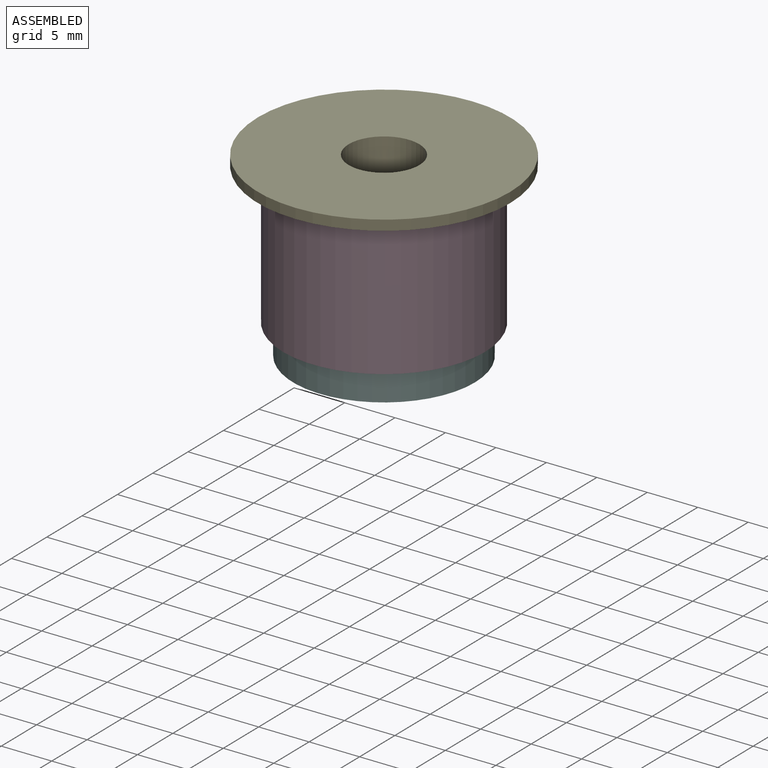
[diagram: assembled view]
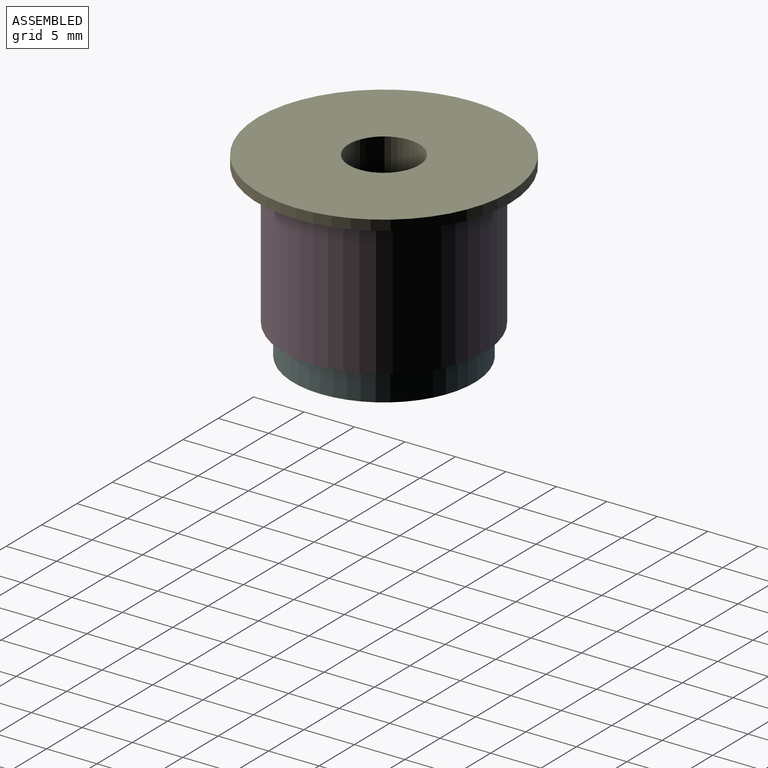
[diagram: assembled view, second angle]
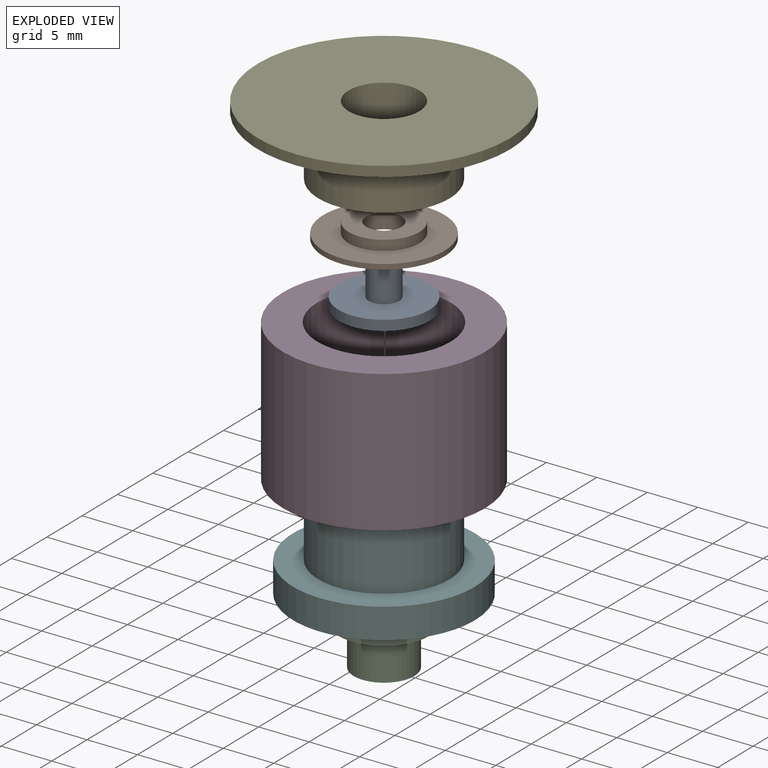
[diagram: exploded view]
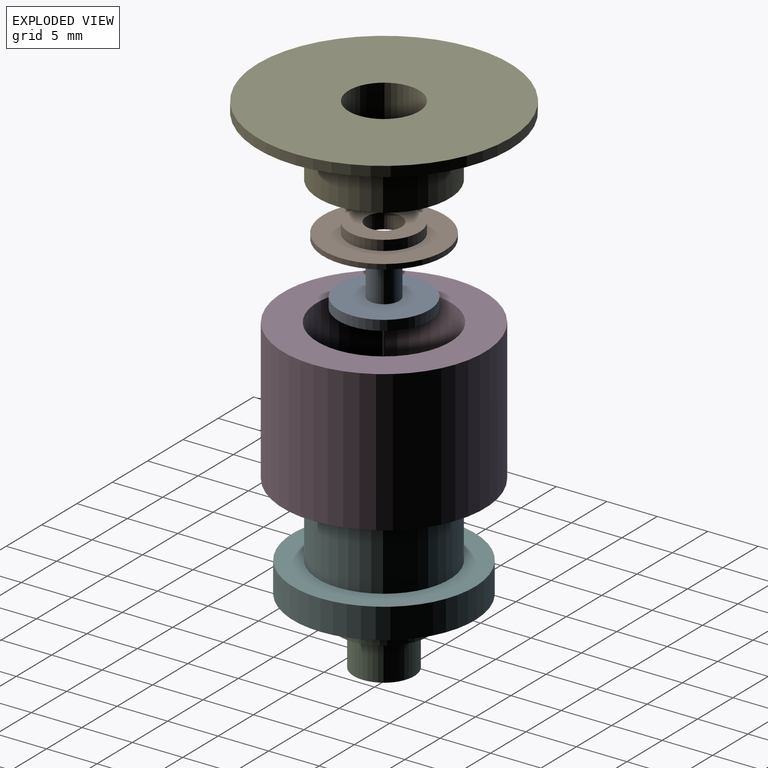
[diagram: exploded view, second angle]
ASSEMBLY  parts=6 mates=5
PART A: 5 faces, bbox 9x9x4.5 mm
  f0: cylinder r=4.5mm len=9mm, axis (0,0,1), area 28.3mm2, adj f1,f2
  f1: plane 9x9mm, normal (0,0,-1), area 63.6mm2, adj f0
  f2: plane 9x9mm, normal (0,0,1), area 56.5mm2, adj f0,f3
  f3: cylinder r=1.5mm len=3.5mm, axis (0,0,-1), area 33mm2, adj f2,f4
  f4: plane 3x3mm, normal (0,0,1), area 7.1mm2, adj f3
PART B: 6 faces, bbox 12x12x1.5 mm
  f0: cylinder r=6mm len=12mm, axis (0,0,1), area 18.8mm2, adj f2,f3
  f1: cylinder r=1.75mm len=3.5mm, axis (0,0,1), area 16.5mm2, adj f2,f5
  f2: plane 12x12mm, normal (0,0,-1), area 103.5mm2, adj f0,f1
  f3: plane 12x12mm, normal (0,0,1), area 74.6mm2, adj f0,f4
  f4: cylinder r=3.5mm len=7mm, axis (0,0,-1), area 22mm2, adj f3,f5
  f5: plane 7x7mm, normal (0,0,1), area 28.9mm2, adj f1,f4
PART C: 5 faces, bbox 9x9x5 mm
  f0: cylinder r=4.5mm len=9mm, axis (0,0,-1), area 28.3mm2, adj f1,f2
  f1: plane 9x9mm, normal (0,0,1), area 63.6mm2, adj f0
  f2: plane 9x9mm, normal (0,0,-1), area 35.3mm2, adj f0,f3
  f3: cylinder r=3mm len=6mm, axis (0,0,1), area 75.4mm2, adj f2,f4
  f4: plane 6x6mm, normal (0,0,-1), area 28.3mm2, adj f3
PART D: 4 faces, bbox 20x20x14 mm
  f0: cylinder r=6.6mm len=14mm, axis (0,0,-1), area 580.6mm2, adj f2,f3
  f1: cylinder r=10mm len=20mm, axis (0,0,-1), area 879.6mm2, adj f2,f3
  f2: plane 20x20mm, normal (0,0,1), area 177.3mm2, adj f0,f1
  f3: plane 20x20mm, normal (0,0,-1), area 177.3mm2, adj f0,f1
PART E: 6 faces, bbox 25x25x7 mm
  f0: cylinder r=3.5mm len=7mm, axis (0,0,1), area 153.9mm2, adj f2,f4
  f1: cylinder r=6.5mm len=13mm, axis (0,0,1), area 245mm2, adj f2,f5
  f2: plane 13x13mm, normal (0,0,-1), area 94.2mm2, adj f0,f1
  f3: cylinder r=12.5mm len=25mm, axis (0,0,-1), area 78.5mm2, adj f4,f5
  f4: plane 25x25mm, normal (0,0,1), area 452.4mm2, adj f0,f3
  f5: plane 25x25mm, normal (0,0,-1), area 358.1mm2, adj f1,f3
PART F: 8 faces, bbox 18x18x9 mm
  f0: plane 10x10mm, normal (0,0,1), area 50.3mm2, adj f2,f5
  f1: cylinder r=9mm len=18mm, axis (0,0,1), area 169.6mm2, adj f3,f4
  f2: cylinder r=3mm len=6mm, axis (0,0,1), area 56.5mm2, adj f0,f3
  f3: plane 18x18mm, normal (0,0,-1), area 226.2mm2, adj f1,f2
  f4: plane 18x18mm, normal (0,0,1), area 121.7mm2, adj f1,f6
  f5: cylinder r=5mm len=10mm, axis (0,0,-1), area 188.5mm2, adj f0,f7
  f6: cylinder r=6.5mm len=13mm, axis (0,0,-1), area 245mm2, adj f4,f7
  f7: plane 13x13mm, normal (0,0,1), area 54.2mm2, adj f5,f6
PLACE A t=(-2.51,-0.82,13.35)mm
PLACE B t=(-2.51,-0.82,13.85)mm
PLACE C t=(-2.51,-0.82,5.85)mm
PLACE D t=(-2.51,-0.82,5.85)mm
PLACE E t=(-2.51,-0.82,19.85)mm
PLACE F t=(-2.51,-0.82,5.85)mm
MATE fastened C.f0 <-> F.f1  axis (0,0,-1) through (-2.51,-0.82,5.85)mm
MATE fastened B.f0 <-> E.f0  axis (0,0,1) through (-2.51,-0.82,13.85)mm
MATE fastened A.f0 <-> B.f0  axis (0,0,1) through (-2.51,-0.82,13.35)mm
MATE fastened F.f1 <-> D.f0  axis (0,0,1) through (-2.51,-0.82,5.85)mm
MATE fastened D.f0 <-> E.f0  axis (0,0,1) through (-2.51,-0.82,19.85)mm
